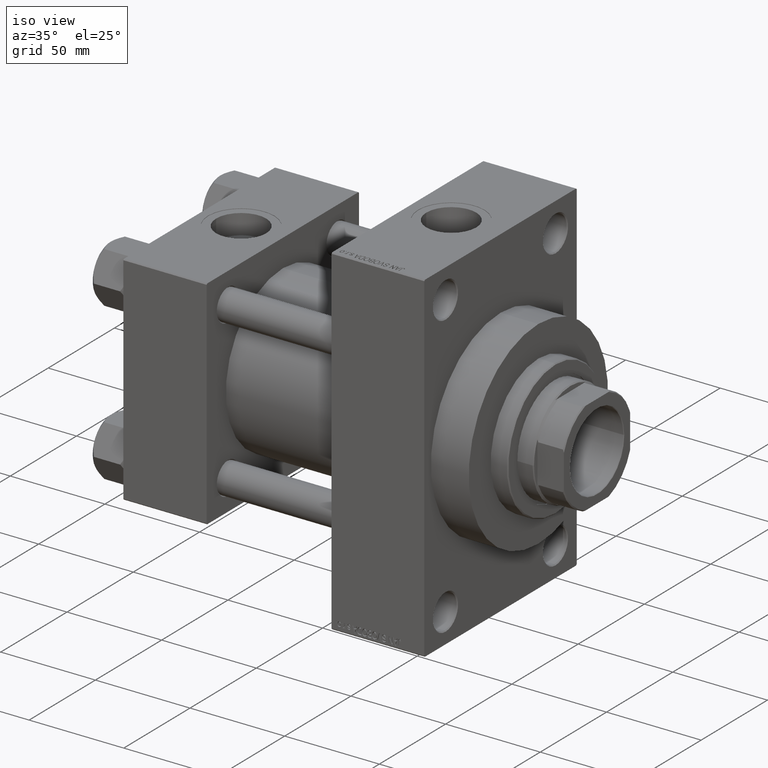
[diagram: clean part render]
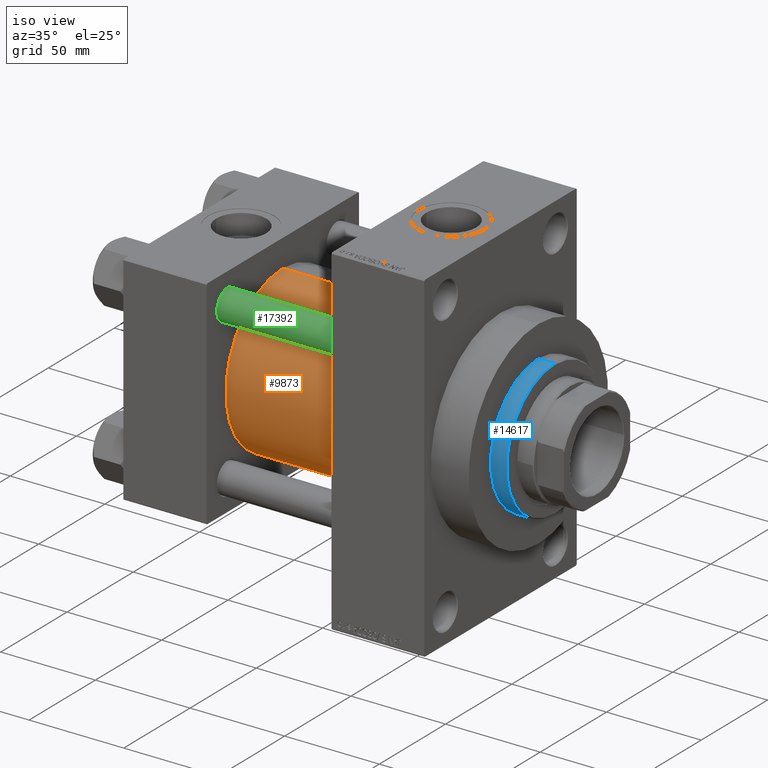
[diagram: same view with three faces highlighted in distinct colors, each labeled with its STEP entity id]
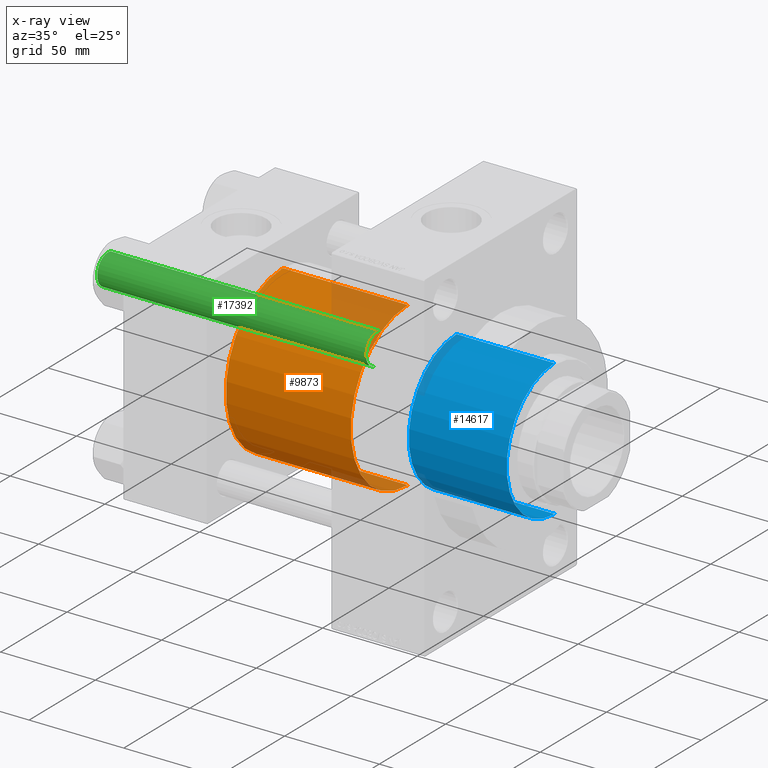
[diagram: x-ray of the same camera — body ghosted, the three highlighted faces saturated]
A machine part, iso view with three faces highlighted in distinct colors.
The next image is the same camera in x-ray (body ghosted, the three faces saturated) — at least one of them is partly hidden behind the body in this view.
Their STEP definitions:

[orange] entity #9873 — the highlighted cylindrical surface (partial cylindrical patch) has radius 43 mm, axis along (-1, -0, -0).
#735 = CARTESIAN_POINT ( 'NONE',  ( 44.00000000000000000, -2.602085213965210642E-15, 43.00000000000000000 ) ) ;
#1557 = VECTOR ( 'NONE', #30752, 1000.000000000000000 ) ;
#2246 = CARTESIAN_POINT ( 'NONE',  ( 44.00000000000000000, -2.602085213965210642E-15, 0.000000000000000000 ) ) ;
#2902 = EDGE_CURVE ( 'NONE', #38197, #12239, #48753, .T. ) ;
#4884 = CIRCLE ( 'NONE', #13761, 43.00000000000000000 ) ;
#5108 = CARTESIAN_POINT ( 'NONE',  ( 110.0000000000000000, -2.602085213965210642E-15, 0.000000000000000000 ) ) ;
#9240 = EDGE_CURVE ( 'NONE', #12239, #19385, #45625, .T. ) ;
#9873 = ADVANCED_FACE ( 'NONE', ( #36101 ), #12421, .T. ) ;
#11124 = CARTESIAN_POINT ( 'NONE',  ( 110.0000000000000000, 2.663896022368408223E-15, -43.00000000000000000 ) ) ;
#11274 = CARTESIAN_POINT ( 'NONE',  ( 44.00000000000000000, 2.663896022368408223E-15, -43.00000000000000000 ) ) ;
#11372 = CARTESIAN_POINT ( 'NONE',  ( 110.0000000000000000, -2.602085213965210642E-15, 43.00000000000000000 ) ) ;
#12239 = VERTEX_POINT ( 'NONE', #30619 ) ;
#12421 = CYLINDRICAL_SURFACE ( 'NONE', #39200, 43.00000000000000000 ) ;
#13761 = AXIS2_PLACEMENT_3D ( 'NONE', #2246, #37003, #32976 ) ;
#15268 = VERTEX_POINT ( 'NONE', #735 ) ;
#16379 = EDGE_LOOP ( 'NONE', ( #40944, #21506, #21076, #45998 ) ) ;
#18312 = VECTOR ( 'NONE', #22465, 1000.000000000000000 ) ;
#19385 = VERTEX_POINT ( 'NONE', #11274 ) ;
#20496 = DIRECTION ( 'NONE',  ( 0.000000000000000000, 0.000000000000000000, -1.000000000000000000 ) ) ;
#21076 = ORIENTED_EDGE ( 'NONE', *, *, #40386, .T. ) ;
#21506 = ORIENTED_EDGE ( 'NONE', *, *, #2902, .F. ) ;
#22465 = DIRECTION ( 'NONE',  ( -1.000000000000000000, -0.000000000000000000, -0.000000000000000000 ) ) ;
#24020 = CARTESIAN_POINT ( 'NONE',  ( 110.0000000000000000, -2.602085213965210642E-15, 0.000000000000000000 ) ) ;
#24774 = DIRECTION ( 'NONE',  ( -1.000000000000000000, -0.000000000000000000, -0.000000000000000000 ) ) ;
#26493 = LINE ( 'NONE', #11372, #1557 ) ;
#30619 = CARTESIAN_POINT ( 'NONE',  ( 110.0000000000000000, 2.663896022368408223E-15, -43.00000000000000000 ) ) ;
#30752 = DIRECTION ( 'NONE',  ( -1.000000000000000000, -0.000000000000000000, -0.000000000000000000 ) ) ;
#32062 = DIRECTION ( 'NONE',  ( 0.000000000000000000, 0.000000000000000000, 1.000000000000000000 ) ) ;
#32976 = DIRECTION ( 'NONE',  ( 0.000000000000000000, 0.000000000000000000, 1.000000000000000000 ) ) ;
#35594 = DIRECTION ( 'NONE',  ( 1.000000000000000000, 0.000000000000000000, 0.000000000000000000 ) ) ;
#36101 = FACE_OUTER_BOUND ( 'NONE', #16379, .T. ) ;
#37003 = DIRECTION ( 'NONE',  ( 1.000000000000000000, -0.000000000000000000, 0.000000000000000000 ) ) ;
#37503 = AXIS2_PLACEMENT_3D ( 'NONE', #5108, #35594, #20496 ) ;
#38197 = VERTEX_POINT ( 'NONE', #47530 ) ;
#39200 = AXIS2_PLACEMENT_3D ( 'NONE', #24020, #24774, #32062 ) ;
#40386 = EDGE_CURVE ( 'NONE', #38197, #15268, #26493, .T. ) ;
#40944 = ORIENTED_EDGE ( 'NONE', *, *, #9240, .F. ) ;
#45625 = LINE ( 'NONE', #11124, #18312 ) ;
#45998 = ORIENTED_EDGE ( 'NONE', *, *, #46277, .T. ) ;
#46277 = EDGE_CURVE ( 'NONE', #15268, #19385, #4884, .T. ) ;
#47530 = CARTESIAN_POINT ( 'NONE',  ( 110.0000000000000000, -2.602085213965210642E-15, 43.00000000000000000 ) ) ;
#48753 = CIRCLE ( 'NONE', #37503, 43.00000000000000000 ) ;

[blue] entity #14617 — the highlighted cylindrical surface (partial cylindrical patch) has radius 36 mm, axis along (-1, 0, 0).
#664 = CYLINDRICAL_SURFACE ( 'NONE', #40190, 36.00000000000000000 ) ;
#3058 = VERTEX_POINT ( 'NONE', #30269 ) ;
#4574 = ORIENTED_EDGE ( 'NONE', *, *, #42741, .T. ) ;
#5782 = VERTEX_POINT ( 'NONE', #47569 ) ;
#12250 = EDGE_LOOP ( 'NONE', ( #30156, #33120, #4574, #44714 ) ) ;
#14617 = ADVANCED_FACE ( 'NONE', ( #43207 ), #664, .T. ) ;
#17034 = VECTOR ( 'NONE', #18971, 1000.000000000000000 ) ;
#17994 = CARTESIAN_POINT ( 'NONE',  ( 0.000000000000000000, 0.000000000000000000, 51.76000000000000512 ) ) ;
#18971 = DIRECTION ( 'NONE',  ( -0.000000000000000000, -0.000000000000000000, -1.000000000000000000 ) ) ;
#19465 = EDGE_CURVE ( 'NONE', #36865, #24278, #33332, .T. ) ;
#22172 = AXIS2_PLACEMENT_3D ( 'NONE', #17994, #33348, #48699 ) ;
#24081 = CARTESIAN_POINT ( 'NONE',  ( 0.000000000000000000, 0.000000000000000000, 43.25999999999999801 ) ) ;
#24278 = VERTEX_POINT ( 'NONE', #37097 ) ;
#25523 = CARTESIAN_POINT ( 'NONE',  ( 0.000000000000000000, 0.000000000000000000, 0.000000000000000000 ) ) ;
#27772 = CARTESIAN_POINT ( 'NONE',  ( -36.00000000000000000, 0.000000000000000000, 43.25999999999999801 ) ) ;
#28510 = CARTESIAN_POINT ( 'NONE',  ( 36.00000000000000000, 4.408728476930470856E-15, 51.76000000000000512 ) ) ;
#29176 = EDGE_CURVE ( 'NONE', #5782, #36865, #47093, .T. ) ;
#29298 = DIRECTION ( 'NONE',  ( 1.000000000000000000, 0.000000000000000000, 0.000000000000000000 ) ) ;
#30156 = ORIENTED_EDGE ( 'NONE', *, *, #29176, .T. ) ;
#30269 = CARTESIAN_POINT ( 'NONE',  ( -36.00000000000000000, 0.000000000000000000, 0.000000000000000000 ) ) ;
#30610 = AXIS2_PLACEMENT_3D ( 'NONE', #25523, #49660, #29298 ) ;
#31379 = DIRECTION ( 'NONE',  ( -1.000000000000000000, 0.000000000000000000, 0.000000000000000000 ) ) ;
#31385 = CIRCLE ( 'NONE', #30610, 36.00000000000000000 ) ;
#33120 = ORIENTED_EDGE ( 'NONE', *, *, #19465, .T. ) ;
#33332 = LINE ( 'NONE', #45645, #17034 ) ;
#33348 = DIRECTION ( 'NONE',  ( 0.000000000000000000, 0.000000000000000000, -1.000000000000000000 ) ) ;
#33678 = VECTOR ( 'NONE', #43129, 1000.000000000000000 ) ;
#35338 = LINE ( 'NONE', #27772, #33678 ) ;
#36865 = VERTEX_POINT ( 'NONE', #28510 ) ;
#37097 = CARTESIAN_POINT ( 'NONE',  ( 36.00000000000000000, 4.408728476930470856E-15, 0.000000000000000000 ) ) ;
#38686 = EDGE_CURVE ( 'NONE', #5782, #3058, #35338, .T. ) ;
#40190 = AXIS2_PLACEMENT_3D ( 'NONE', #24081, #42722, #31379 ) ;
#42722 = DIRECTION ( 'NONE',  ( -0.000000000000000000, -0.000000000000000000, -1.000000000000000000 ) ) ;
#42741 = EDGE_CURVE ( 'NONE', #24278, #3058, #31385, .T. ) ;
#43129 = DIRECTION ( 'NONE',  ( -0.000000000000000000, -0.000000000000000000, -1.000000000000000000 ) ) ;
#43207 = FACE_OUTER_BOUND ( 'NONE', #12250, .T. ) ;
#44714 = ORIENTED_EDGE ( 'NONE', *, *, #38686, .F. ) ;
#45645 = CARTESIAN_POINT ( 'NONE',  ( 36.00000000000000000, 4.408728476930470856E-15, 43.25999999999999801 ) ) ;
#47093 = CIRCLE ( 'NONE', #22172, 36.00000000000000000 ) ;
#47569 = CARTESIAN_POINT ( 'NONE',  ( -36.00000000000000000, 0.000000000000000000, 51.76000000000000512 ) ) ;
#48699 = DIRECTION ( 'NONE',  ( 1.000000000000000000, 0.000000000000000000, 0.000000000000000000 ) ) ;
#49660 = DIRECTION ( 'NONE',  ( 0.000000000000000000, 0.000000000000000000, 1.000000000000000000 ) ) ;

[green] entity #17392 — the highlighted cylindrical surface (edge-blend (fillet) strip) has radius 8 mm, axis along (1, 0, 0).
#357 = VERTEX_POINT ( 'NONE', #37958 ) ;
#1888 = CIRCLE ( 'NONE', #23605, 8.000000000000000000 ) ;
#2449 = CARTESIAN_POINT ( 'NONE',  ( -8.000000000000000000, 0.000000000000000000, 0.4999999999999726885 ) ) ;
#4756 = DIRECTION ( 'NONE',  ( 0.000000000000000000, 0.000000000000000000, -1.000000000000000000 ) ) ;
#7425 = ORIENTED_EDGE ( 'NONE', *, *, #23749, .T. ) ;
#9043 = CARTESIAN_POINT ( 'NONE',  ( 0.000000000000000000, 0.000000000000000000, 143.0000000000000000 ) ) ;
#11288 = VERTEX_POINT ( 'NONE', #13131 ) ;
#13131 = CARTESIAN_POINT ( 'NONE',  ( -8.000000000000000000, 0.000000000000000000, 142.4999999999999716 ) ) ;
#17040 = LINE ( 'NONE', #43224, #21451 ) ;
#17392 = ADVANCED_FACE ( 'NONE', ( #25424 ), #40028, .T. ) ;
#17888 = VERTEX_POINT ( 'NONE', #2449 ) ;
#20299 = VERTEX_POINT ( 'NONE', #45281 ) ;
#20902 = DIRECTION ( 'NONE',  ( -0.000000000000000000, -0.000000000000000000, -1.000000000000000000 ) ) ;
#21451 = VECTOR ( 'NONE', #32144, 1000.000000000000000 ) ;
#21732 = VECTOR ( 'NONE', #28935, 1000.000000000000000 ) ;
#23367 = AXIS2_PLACEMENT_3D ( 'NONE', #9043, #20902, #24422 ) ;
#23605 = AXIS2_PLACEMENT_3D ( 'NONE', #39506, #4756, #24157 ) ;
#23749 = EDGE_CURVE ( 'NONE', #11288, #20299, #1888, .T. ) ;
#24157 = DIRECTION ( 'NONE',  ( 1.000000000000000000, 0.000000000000000000, 0.000000000000000000 ) ) ;
#24229 = EDGE_CURVE ( 'NONE', #357, #17888, #46145, .T. ) ;
#24422 = DIRECTION ( 'NONE',  ( -1.000000000000000000, 0.000000000000000000, 0.000000000000000000 ) ) ;
#25016 = DIRECTION ( 'NONE',  ( -0.000000000000000000, -0.000000000000000000, 1.000000000000000000 ) ) ;
#25156 = LINE ( 'NONE', #38164, #21732 ) ;
#25424 = FACE_OUTER_BOUND ( 'NONE', #34619, .T. ) ;
#28935 = DIRECTION ( 'NONE',  ( -0.000000000000000000, -0.000000000000000000, -1.000000000000000000 ) ) ;
#31637 = AXIS2_PLACEMENT_3D ( 'NONE', #43394, #25016, #40374 ) ;
#32144 = DIRECTION ( 'NONE',  ( -0.000000000000000000, -0.000000000000000000, -1.000000000000000000 ) ) ;
#32369 = ORIENTED_EDGE ( 'NONE', *, *, #45487, .T. ) ;
#34596 = EDGE_CURVE ( 'NONE', #11288, #17888, #17040, .T. ) ;
#34619 = EDGE_LOOP ( 'NONE', ( #7425, #32369, #46779, #44551 ) ) ;
#37958 = CARTESIAN_POINT ( 'NONE',  ( 8.000000000000000000, 9.797174393178825657E-16, 0.4999999999999726885 ) ) ;
#38164 = CARTESIAN_POINT ( 'NONE',  ( 8.000000000000000000, 9.797174393178825657E-16, 143.0000000000000000 ) ) ;
#39506 = CARTESIAN_POINT ( 'NONE',  ( 0.000000000000000000, 0.000000000000000000, 142.4999999999999716 ) ) ;
#40028 = CYLINDRICAL_SURFACE ( 'NONE', #23367, 8.000000000000000000 ) ;
#40374 = DIRECTION ( 'NONE',  ( 1.000000000000000000, 0.000000000000000000, 0.000000000000000000 ) ) ;
#43224 = CARTESIAN_POINT ( 'NONE',  ( -8.000000000000000000, 0.000000000000000000, 143.0000000000000000 ) ) ;
#43394 = CARTESIAN_POINT ( 'NONE',  ( 0.000000000000000000, 0.000000000000000000, 0.4999999999999726885 ) ) ;
#44551 = ORIENTED_EDGE ( 'NONE', *, *, #34596, .F. ) ;
#45281 = CARTESIAN_POINT ( 'NONE',  ( 8.000000000000000000, 9.797174393178825657E-16, 142.4999999999999716 ) ) ;
#45487 = EDGE_CURVE ( 'NONE', #20299, #357, #25156, .T. ) ;
#46145 = CIRCLE ( 'NONE', #31637, 8.000000000000000000 ) ;
#46779 = ORIENTED_EDGE ( 'NONE', *, *, #24229, .T. ) ;